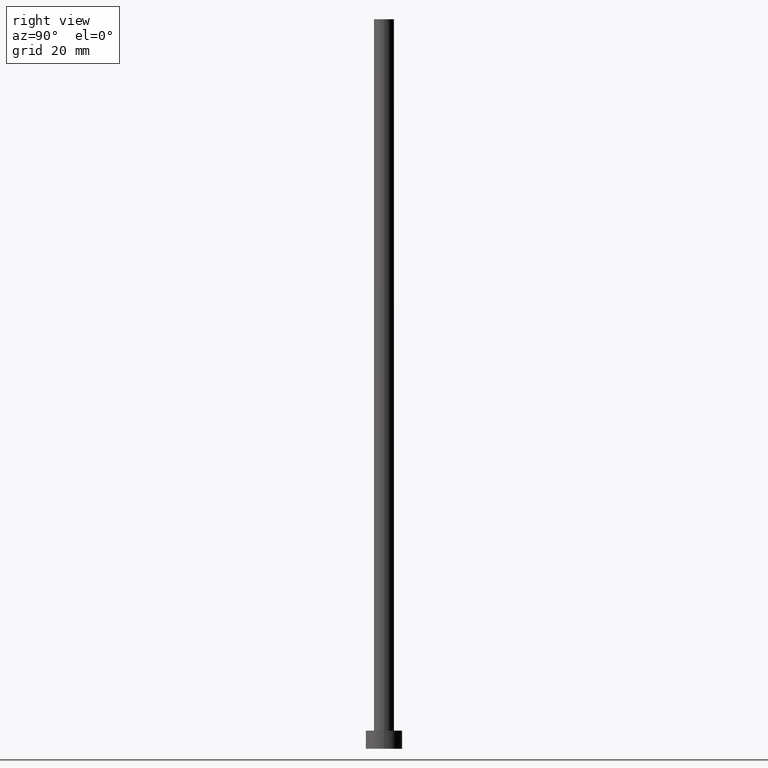
[diagram: clean part render]
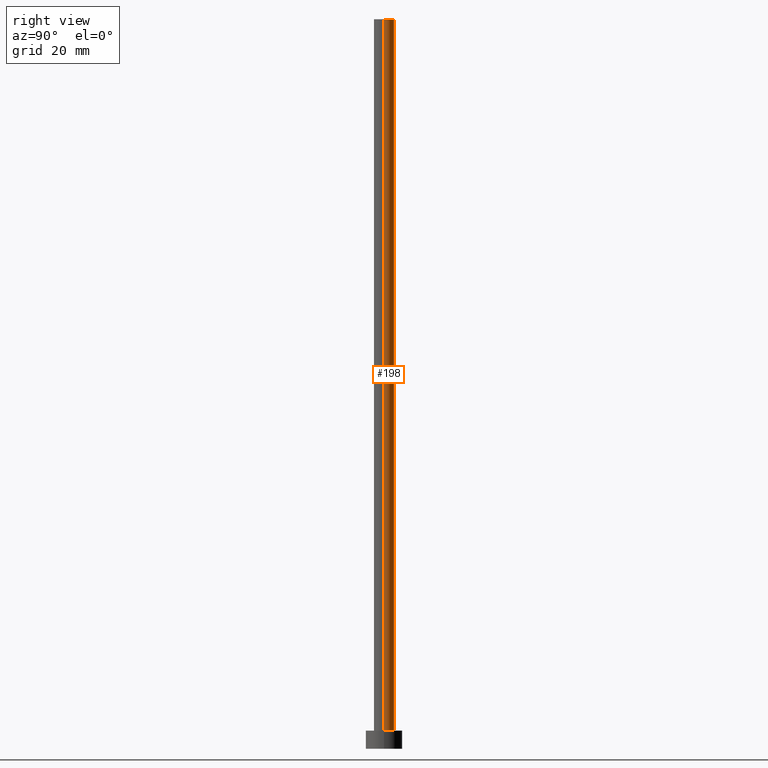
[diagram: same view with one face highlighted and labeled with its STEP entity id]
A machine part, right view. The second image highlights one B-rep face of the part: STEP entity #198.
In plain terms, the highlighted cylindrical surface (edge-blend (fillet) strip) has radius 2.75 mm, axis along (-0, -0, -1).
Its self-contained STEP definition (entity closure, byte-faithful):
#2 = CARTESIAN_POINT ( 'NONE',  ( -2.750000000000000000, 0.000000000000000000, 200.0000000000000000 ) ) ;
#6 = CARTESIAN_POINT ( 'NONE',  ( 0.000000000000000000, 0.000000000000000000, 200.0000000000000000 ) ) ;
#7 = VERTEX_POINT ( 'NONE', #2 ) ;
#15 = EDGE_CURVE ( 'NONE', #153, #36, #20, .T. ) ;
#19 = AXIS2_PLACEMENT_3D ( 'NONE', #6, #203, #61 ) ;
#20 = CIRCLE ( 'NONE', #146, 2.750000000000000000 ) ;
#26 = LINE ( 'NONE', #96, #74 ) ;
#36 = VERTEX_POINT ( 'NONE', #141 ) ;
#49 = ORIENTED_EDGE ( 'NONE', *, *, #72, .F. ) ;
#57 = CARTESIAN_POINT ( 'NONE',  ( 2.750000000000000000, 3.367778697655221012E-16, 200.0000000000000000 ) ) ;
#58 = DIRECTION ( 'NONE',  ( 1.000000000000000000, 0.000000000000000000, 0.000000000000000000 ) ) ;
#61 = DIRECTION ( 'NONE',  ( -1.000000000000000000, 0.000000000000000000, 0.000000000000000000 ) ) ;
#66 = ORIENTED_EDGE ( 'NONE', *, *, #15, .T. ) ;
#72 = EDGE_CURVE ( 'NONE', #7, #36, #134, .T. ) ;
#74 = VECTOR ( 'NONE', #187, 1000.000000000000000 ) ;
#88 = EDGE_LOOP ( 'NONE', ( #210, #104, #66, #49 ) ) ;
#96 = CARTESIAN_POINT ( 'NONE',  ( 2.750000000000000000, 3.367778697655221012E-16, 200.0000000000000000 ) ) ;
#104 = ORIENTED_EDGE ( 'NONE', *, *, #209, .T. ) ;
#105 = VERTEX_POINT ( 'NONE', #57 ) ;
#112 = EDGE_CURVE ( 'NONE', #105, #7, #174, .T. ) ;
#115 = DIRECTION ( 'NONE',  ( -0.000000000000000000, -0.000000000000000000, -1.000000000000000000 ) ) ;
#125 = CARTESIAN_POINT ( 'NONE',  ( 0.000000000000000000, 0.000000000000000000, 200.0000000000000000 ) ) ;
#134 = LINE ( 'NONE', #212, #224 ) ;
#141 = CARTESIAN_POINT ( 'NONE',  ( -2.750000000000000000, 0.000000000000000000, 5.000000000000000000 ) ) ;
#145 = DIRECTION ( 'NONE',  ( 0.000000000000000000, 0.000000000000000000, 1.000000000000000000 ) ) ;
#146 = AXIS2_PLACEMENT_3D ( 'NONE', #234, #213, #58 ) ;
#147 = DIRECTION ( 'NONE',  ( 1.000000000000000000, 0.000000000000000000, 0.000000000000000000 ) ) ;
#153 = VERTEX_POINT ( 'NONE', #246 ) ;
#174 = CIRCLE ( 'NONE', #182, 2.750000000000000000 ) ;
#182 = AXIS2_PLACEMENT_3D ( 'NONE', #125, #145, #147 ) ;
#187 = DIRECTION ( 'NONE',  ( -0.000000000000000000, -0.000000000000000000, -1.000000000000000000 ) ) ;
#198 = ADVANCED_FACE ( 'NONE', ( #222 ), #207, .T. ) ;
#203 = DIRECTION ( 'NONE',  ( -0.000000000000000000, -0.000000000000000000, -1.000000000000000000 ) ) ;
#207 = CYLINDRICAL_SURFACE ( 'NONE', #19, 2.750000000000000000 ) ;
#209 = EDGE_CURVE ( 'NONE', #105, #153, #26, .T. ) ;
#210 = ORIENTED_EDGE ( 'NONE', *, *, #112, .F. ) ;
#212 = CARTESIAN_POINT ( 'NONE',  ( -2.750000000000000000, 0.000000000000000000, 200.0000000000000000 ) ) ;
#213 = DIRECTION ( 'NONE',  ( 0.000000000000000000, 0.000000000000000000, 1.000000000000000000 ) ) ;
#222 = FACE_OUTER_BOUND ( 'NONE', #88, .T. ) ;
#224 = VECTOR ( 'NONE', #115, 1000.000000000000000 ) ;
#234 = CARTESIAN_POINT ( 'NONE',  ( 0.000000000000000000, 0.000000000000000000, 5.000000000000000000 ) ) ;
#246 = CARTESIAN_POINT ( 'NONE',  ( 2.750000000000000000, 3.367778697655221012E-16, 5.000000000000000000 ) ) ;